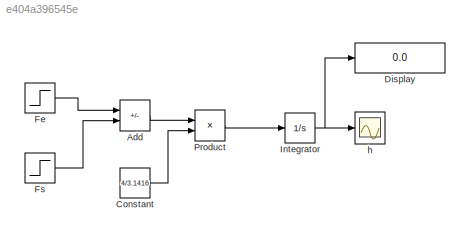
MODEL slx_e404a396545e
KIND model
CONFIG AbsTol = auto
CONFIG EnableMultiTasking = off
CONFIG FixedStep = auto
CONFIG MaxStep = auto
CONFIG MinStep = auto
CONFIG RelTol = 1e-3
CONFIG SampleTimeConstraint = Unconstrained
CONFIG SolverName = VariableStepAuto
CONFIG StartTime = 0.0
CONFIG StopTime = 10
BLOCK [Sum] Add
  IconShape = rectangular
  Inputs = +-
  Ports = [2, 1]
BLOCK [Constant] Constant
  Value = 4/3.1416
BLOCK [Display] Display
  Decimation = 1
  Ports = [1]
BLOCK [Step] Fe
  After = 0.1
  Before = 0.1
  SampleTime = 0
  Time = 0
BLOCK [Step] Fs
  After = 0
  Before = 0.1
  SampleTime = 0
  Time = 0
BLOCK [Integrator] Integrator
  InitialCondition = 1
  Ports = [1, 1]
BLOCK [Product] Product
  Ports = [2, 1]
BLOCK [Scope] h
  Floating = off
  NumInputPorts = 1
  Ports = [1]
  ScopeSpecificationString = Simulink.scopes.TimeScopeBlockCfg('CurrentConfiguration', extmgr.ConfigurationSet(extmgr.Configuration('Core','General UI',true),extmgr.Configuration('Core','Source UI',true),extmgr.Configuration('Sources','WiredSimulink',true),extmgr.Configuration('Visuals','Time Domain',true,'SerializedDisplays',{struct('MinYLimReal','0.84085','MaxYLimReal','2.43239','YLabelReal','','MinYLimMag','0.84085','MaxYL...<+1328ch>
LINE Add:1 -> Product:1
LINE Constant:1 -> Product:2
LINE Fe:1 -> Add:1
LINE Fs:1 -> Add:2
NET Integrator:1 -> Display:1, h:1
LINE Product:1 -> Integrator:1
note: NET lines group one-source signal fan-out (src -> all destinations, sorted); 1:1 wires keep LINE
